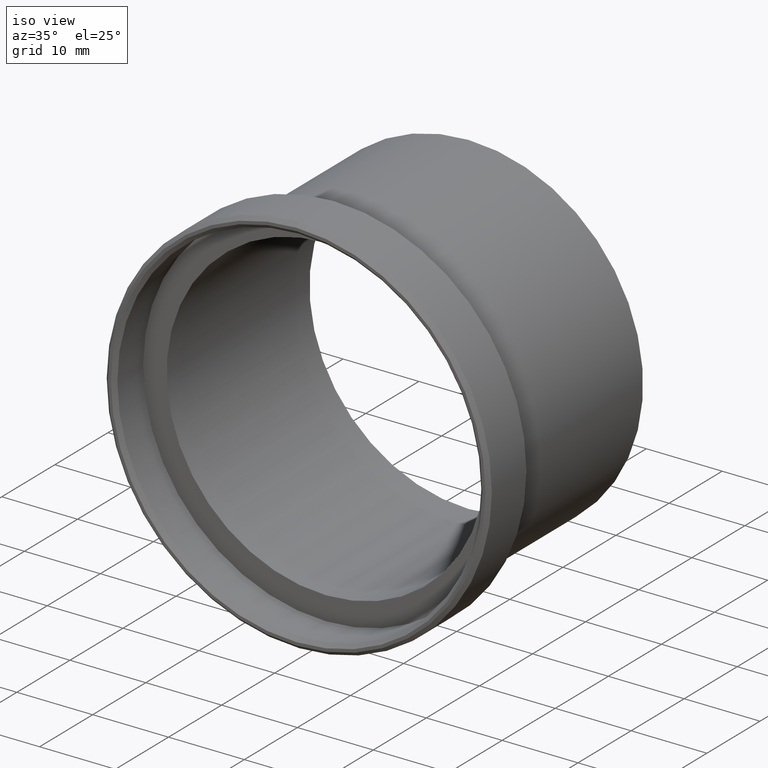
[diagram: clean part render]
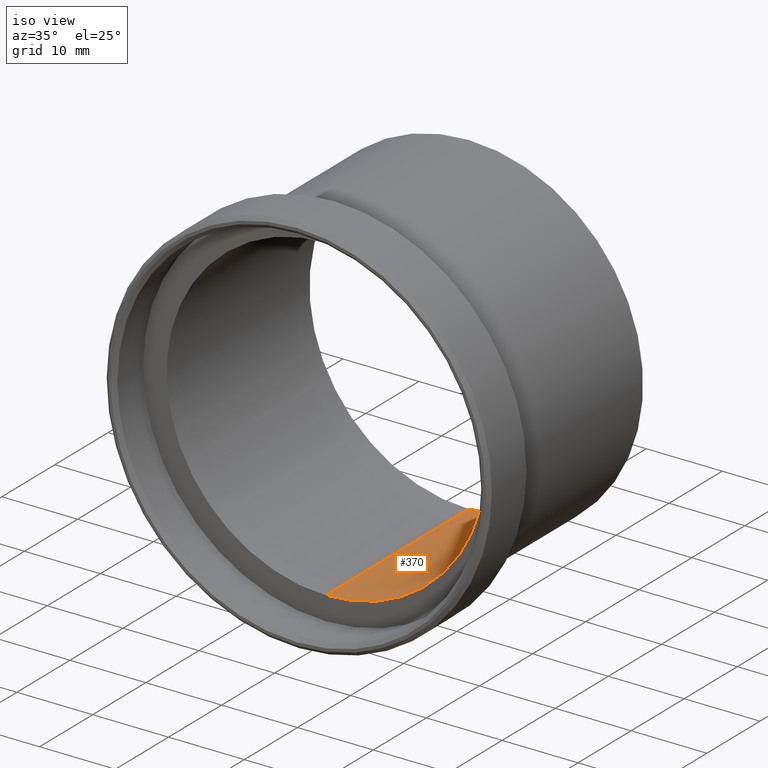
[diagram: same view with one face highlighted and labeled with its STEP entity id]
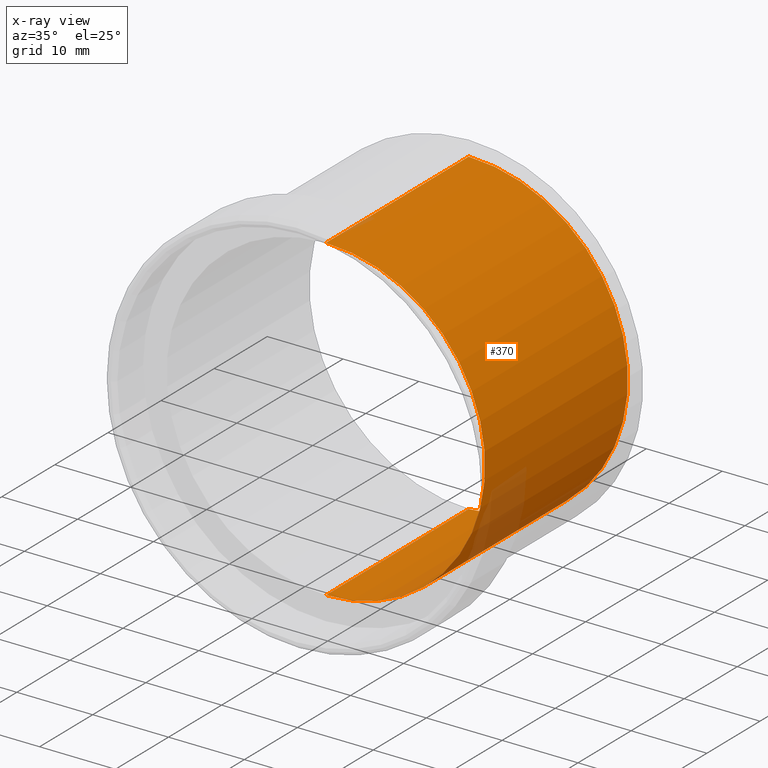
[diagram: x-ray of the same camera — body ghosted, the highlighted face saturated]
A machine part, iso view. The second image highlights one B-rep face of the part: STEP entity #370.
The next image is the same camera in x-ray: the body ghosted, the highlighted face saturated — about 5% of this face is hidden behind the body in this view.
In plain terms, the highlighted cylindrical surface (partial cylindrical patch) has radius 21 mm, axis along (-0, 1, -0).
Its self-contained STEP definition (entity closure, byte-faithful):
#25 = DIRECTION ( 'NONE',  ( 0.0000000000000000000, 0.0000000000000000000, 1.000000000000000000 ) ) ;
#44 = LINE ( 'NONE', #193, #839 ) ;
#70 = DIRECTION ( 'NONE',  ( 0.0000000000000000000, 0.0000000000000000000, 1.000000000000000000 ) ) ;
#88 = VERTEX_POINT ( 'NONE', #386 ) ;
#98 = VERTEX_POINT ( 'NONE', #444 ) ;
#121 = DIRECTION ( 'NONE',  ( -0.0000000000000000000, 1.000000000000000000, -0.0000000000000000000 ) ) ;
#129 = ORIENTED_EDGE ( 'NONE', *, *, #537, .T. ) ;
#175 = AXIS2_PLACEMENT_3D ( 'NONE', #605, #347, #277 ) ;
#182 = CIRCLE ( 'NONE', #175, 21.00000000000000700 ) ;
#193 = CARTESIAN_POINT ( 'NONE',  ( 0.0000000000000000000, 44.59859774529311900, 21.00000000000000700 ) ) ;
#195 = EDGE_CURVE ( 'NONE', #88, #254, #44, .T. ) ;
#238 = EDGE_CURVE ( 'NONE', #864, #98, #557, .T. ) ;
#250 = CARTESIAN_POINT ( 'NONE',  ( 0.0000000000000000000, 26.54285417456689400, 21.00000000000000700 ) ) ;
#254 = VERTEX_POINT ( 'NONE', #250 ) ;
#267 = ORIENTED_EDGE ( 'NONE', *, *, #871, .F. ) ;
#277 = DIRECTION ( 'NONE',  ( 0.0000000000000000000, 0.0000000000000000000, 1.000000000000000000 ) ) ;
#347 = DIRECTION ( 'NONE',  ( -0.0000000000000000000, 1.000000000000000000, -0.0000000000000000000 ) ) ;
#357 = CARTESIAN_POINT ( 'NONE',  ( 0.0000000000000000000, -0.3571458254331069700, 0.0000000000000000000 ) ) ;
#370 = ADVANCED_FACE ( 'NONE', ( #535 ), #670, .F. ) ;
#386 = CARTESIAN_POINT ( 'NONE',  ( 0.0000000000000000000, -0.3571458254331069700, 21.00000000000000700 ) ) ;
#406 = DIRECTION ( 'NONE',  ( -0.0000000000000000000, 1.000000000000000000, -0.0000000000000000000 ) ) ;
#418 = AXIS2_PLACEMENT_3D ( 'NONE', #551, #406, #70 ) ;
#436 = CARTESIAN_POINT ( 'NONE',  ( 2.571758278209442400E-015, -0.3571458254331069700, -21.00000000000000700 ) ) ;
#444 = CARTESIAN_POINT ( 'NONE',  ( 2.602374448188126600E-015, 26.54285417456689400, -21.00000000000000700 ) ) ;
#463 = AXIS2_PLACEMENT_3D ( 'NONE', #357, #858, #25 ) ;
#535 = FACE_OUTER_BOUND ( 'NONE', #590, .T. ) ;
#537 = EDGE_CURVE ( 'NONE', #254, #98, #182, .T. ) ;
#551 = CARTESIAN_POINT ( 'NONE',  ( 0.0000000000000000000, 44.59859774529311900, 0.0000000000000000000 ) ) ;
#557 = LINE ( 'NONE', #746, #819 ) ;
#590 = EDGE_LOOP ( 'NONE', ( #657, #267, #856, #129 ) ) ;
#605 = CARTESIAN_POINT ( 'NONE',  ( 0.0000000000000000000, 26.54285417456689400, 0.0000000000000000000 ) ) ;
#626 = DIRECTION ( 'NONE',  ( -0.0000000000000000000, 1.000000000000000000, -0.0000000000000000000 ) ) ;
#657 = ORIENTED_EDGE ( 'NONE', *, *, #238, .F. ) ;
#670 = CYLINDRICAL_SURFACE ( 'NONE', #418, 21.00000000000000700 ) ;
#733 = CIRCLE ( 'NONE', #463, 21.00000000000000700 ) ;
#746 = CARTESIAN_POINT ( 'NONE',  ( 2.571758278209442400E-015, 44.59859774529311900, -21.00000000000000700 ) ) ;
#819 = VECTOR ( 'NONE', #626, 1000.000000000000000 ) ;
#839 = VECTOR ( 'NONE', #121, 1000.000000000000000 ) ;
#856 = ORIENTED_EDGE ( 'NONE', *, *, #195, .T. ) ;
#858 = DIRECTION ( 'NONE',  ( -0.0000000000000000000, 1.000000000000000000, -0.0000000000000000000 ) ) ;
#864 = VERTEX_POINT ( 'NONE', #436 ) ;
#871 = EDGE_CURVE ( 'NONE', #88, #864, #733, .T. ) ;